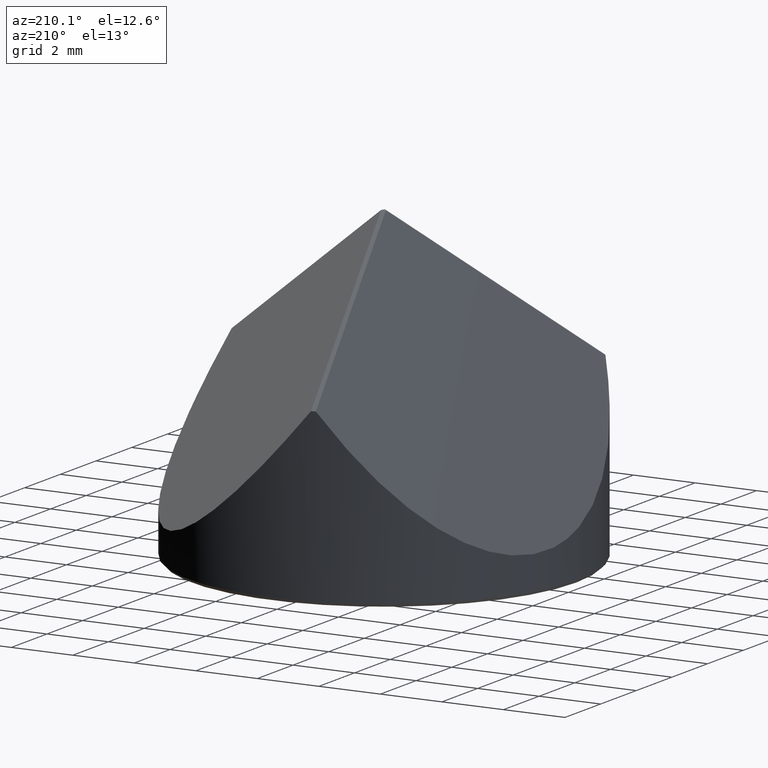
[diagram: clean part render]
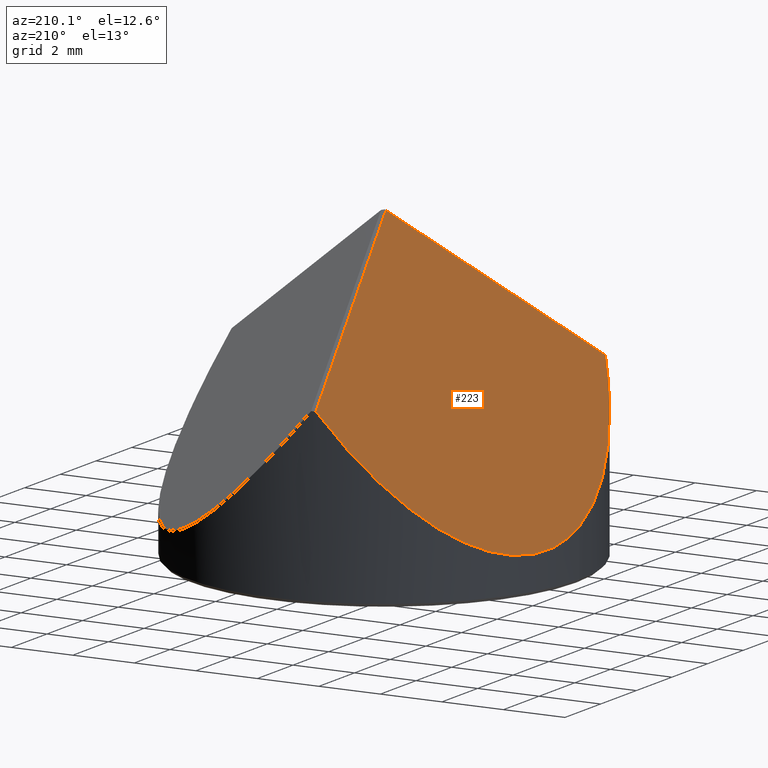
[diagram: same view with one face highlighted and labeled with its STEP entity id]
A machine part, auxiliary view. The second image highlights one B-rep face of the part: STEP entity #223.
In plain terms, the highlighted planar face has unit normal (-0.7761, 0.2537, 0.5774).
Its self-contained STEP definition (entity closure, byte-faithful):
#14 = VERTEX_POINT ( 'NONE', #283 ) ;
#23 = EDGE_LOOP ( 'NONE', ( #276, #195, #301, #271 ) ) ;
#24 = EDGE_CURVE ( 'NONE', #14, #304, #269, .T. ) ;
#32 = DIRECTION ( 'NONE',  ( -0.1683570817218965621, 0.7989509119468813925, -0.5773502691896256200 ) ) ;
#33 = LINE ( 'NONE', #176, #101 ) ;
#45 = DIRECTION ( 'NONE',  ( 0.6077332452617950631, 0.5452769656516159857, 0.5773502691896258421 ) ) ;
#49 = DIRECTION ( 'NONE',  ( 0.5968741507397000712, 0.000000000000000000, 0.8023348728422327047 ) ) ;
#53 = CARTESIAN_POINT ( 'NONE',  ( -6.350000000000001421, 3.103686174823302668, -0.4094046865415499337 ) ) ;
#96 = VECTOR ( 'NONE', #45, 999.9999999999998863 ) ;
#99 = CARTESIAN_POINT ( 'NONE',  ( -6.349999999999999645, 0.000000000000000000, 0.9542810377841138836 ) ) ;
#101 = VECTOR ( 'NONE', #32, 1000.000000000000000 ) ;
#121 = EDGE_CURVE ( 'NONE', #309, #14, #33, .T. ) ;
#122 = CARTESIAN_POINT ( 'NONE',  ( -6.349999999999999645, 0.000000000000000000, 0.9542810377841138836 ) ) ;
#132 = CARTESIAN_POINT ( 'NONE',  ( -3.346683942978864401, -2.907747193824007592, 6.269017013437424346 ) ) ;
#153 = AXIS2_PLACEMENT_3D ( 'NONE', #219, #297, #49 ) ;
#158 = LINE ( 'NONE', #132, #96 ) ;
#169 = CARTESIAN_POINT ( 'NONE',  ( -4.773349735908086977, -4.187795637170729002, 4.913675856748671578 ) ) ;
#175 = EDGE_CURVE ( 'NONE', #304, #333, #182, .T. ) ;
#176 = CARTESIAN_POINT ( 'NONE',  ( -0.9832233233696141550, 4.323026608033536888, 6.269017013437424346 ) ) ;
#182 =( BOUNDED_CURVE ( )  B_SPLINE_CURVE ( 3, ( #122, #232, #348, #266 ),
 .UNSPECIFIED., .F., .F. ) 
 B_SPLINE_CURVE_WITH_KNOTS ( ( 4, 4 ),
 ( 0.3159145209226036366, 1.036061781187596509 ),
 .UNSPECIFIED. ) 
 CURVE ( )  GEOMETRIC_REPRESENTATION_ITEM ( )  RATIONAL_B_SPLINE_CURVE ( ( 1.000000000000000000, 0.9572472554283688595, 0.9572472554283688595, 1.000000000000000000 ) ) 
 REPRESENTATION_ITEM ( '' )  );
#189 = FACE_OUTER_BOUND ( 'NONE', #23, .T. ) ;
#195 = ORIENTED_EDGE ( 'NONE', *, *, #175, .T. ) ;
#219 = CARTESIAN_POINT ( 'NONE',  ( -4.252298233650112280, 1.389912019580005431, 3.163376020178191528 ) ) ;
#223 = ADVANCED_FACE ( 'NONE', ( #189 ), #322, .T. ) ;
#231 = CARTESIAN_POINT ( 'NONE',  ( -4.408121426120155562, 5.524837858649764399, 1.137126289191131123 ) ) ;
#232 = CARTESIAN_POINT ( 'NONE',  ( -6.349999999999999645, -1.558203443857914650, 1.638918488961053077 ) ) ;
#238 = EDGE_CURVE ( 'NONE', #333, #309, #158, .T. ) ;
#254 = CARTESIAN_POINT ( 'NONE',  ( -1.378444896917990548, 6.198579649093875155, 4.913675856748713322 ) ) ;
#255 = CARTESIAN_POINT ( 'NONE',  ( -0.07760903269836713636, 0.02536739462952273053, 9.374658006696655832 ) ) ;
#266 = CARTESIAN_POINT ( 'NONE',  ( -4.773349735908086977, -4.187795637170729002, 4.913675856748671578 ) ) ;
#269 =( BOUNDED_CURVE ( )  B_SPLINE_CURVE ( 3, ( #254, #231, #53, #99 ),
 .UNSPECIFIED., .F., .T. ) 
 B_SPLINE_CURVE_WITH_KNOTS ( ( 4, 4 ),
 ( 5.247123525991984394, 6.599099828102190202 ),
 .UNSPECIFIED. ) 
 CURVE ( )  GEOMETRIC_REPRESENTATION_ITEM ( )  RATIONAL_B_SPLINE_CURVE ( ( 1.000000000000000000, 0.8533927180882578956, 0.8533927180882578956, 1.000000000000000000 ) ) 
 REPRESENTATION_ITEM ( '' )  );
#271 = ORIENTED_EDGE ( 'NONE', *, *, #121, .T. ) ;
#276 = ORIENTED_EDGE ( 'NONE', *, *, #24, .T. ) ;
#282 = CARTESIAN_POINT ( 'NONE',  ( -6.349999999999999645, 0.000000000000000000, 0.9542810377841138836 ) ) ;
#283 = CARTESIAN_POINT ( 'NONE',  ( -1.378444896917990548, 6.198579649093875155, 4.913675856748713322 ) ) ;
#297 = DIRECTION ( 'NONE',  ( -0.7760903269836918472, 0.2536739462952652402, 0.5773502691896257311 ) ) ;
#301 = ORIENTED_EDGE ( 'NONE', *, *, #238, .T. ) ;
#304 = VERTEX_POINT ( 'NONE', #282 ) ;
#309 = VERTEX_POINT ( 'NONE', #255 ) ;
#322 = PLANE ( 'NONE',  #153 ) ;
#333 = VERTEX_POINT ( 'NONE', #169 ) ;
#348 = CARTESIAN_POINT ( 'NONE',  ( -5.800977701894320937, -3.016480676976988295, 3.017661823563328127 ) ) ;